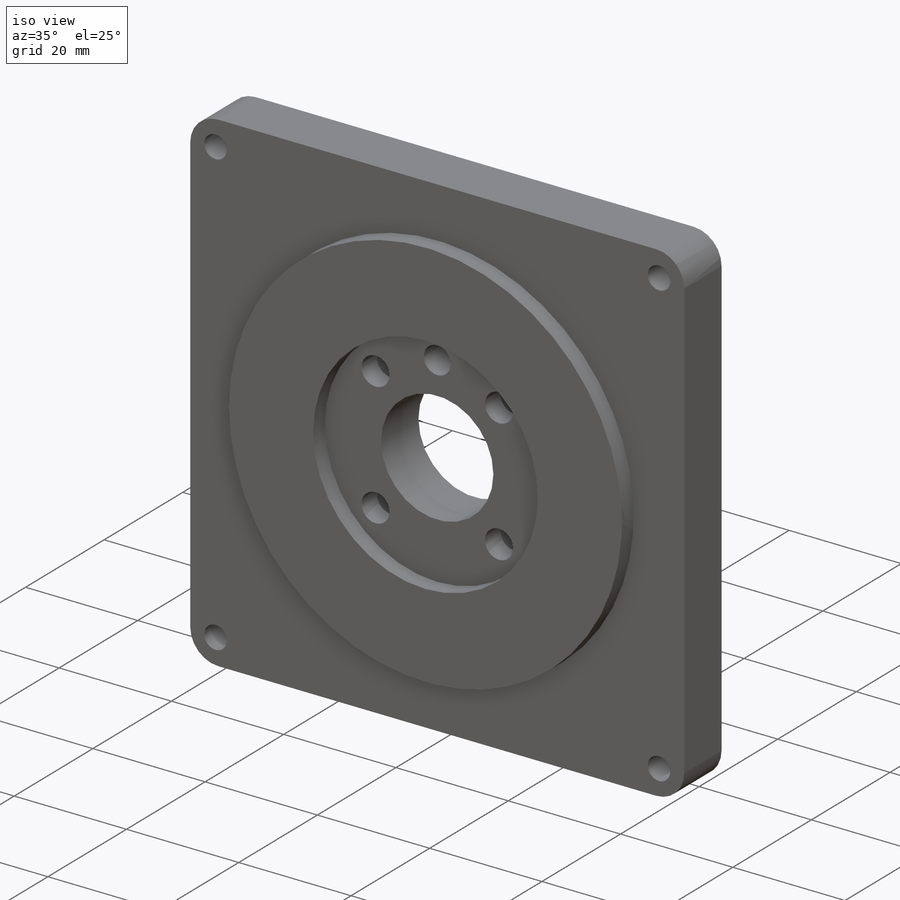
[diagram: iso view]
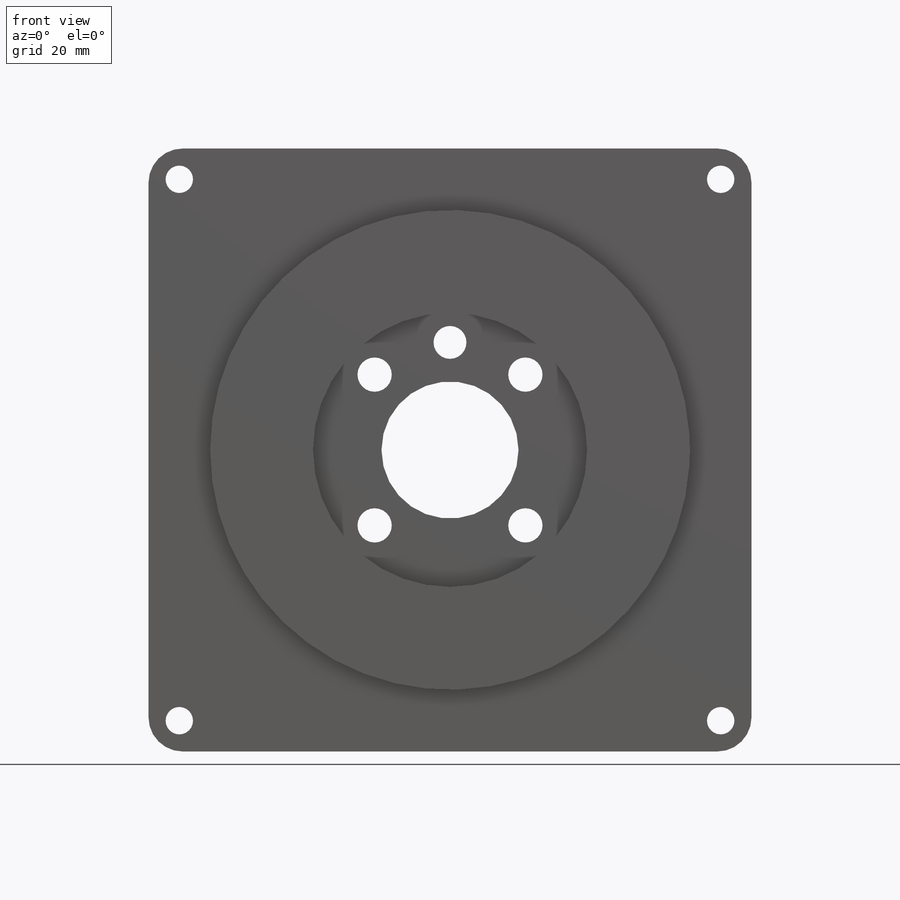
[diagram: front view]
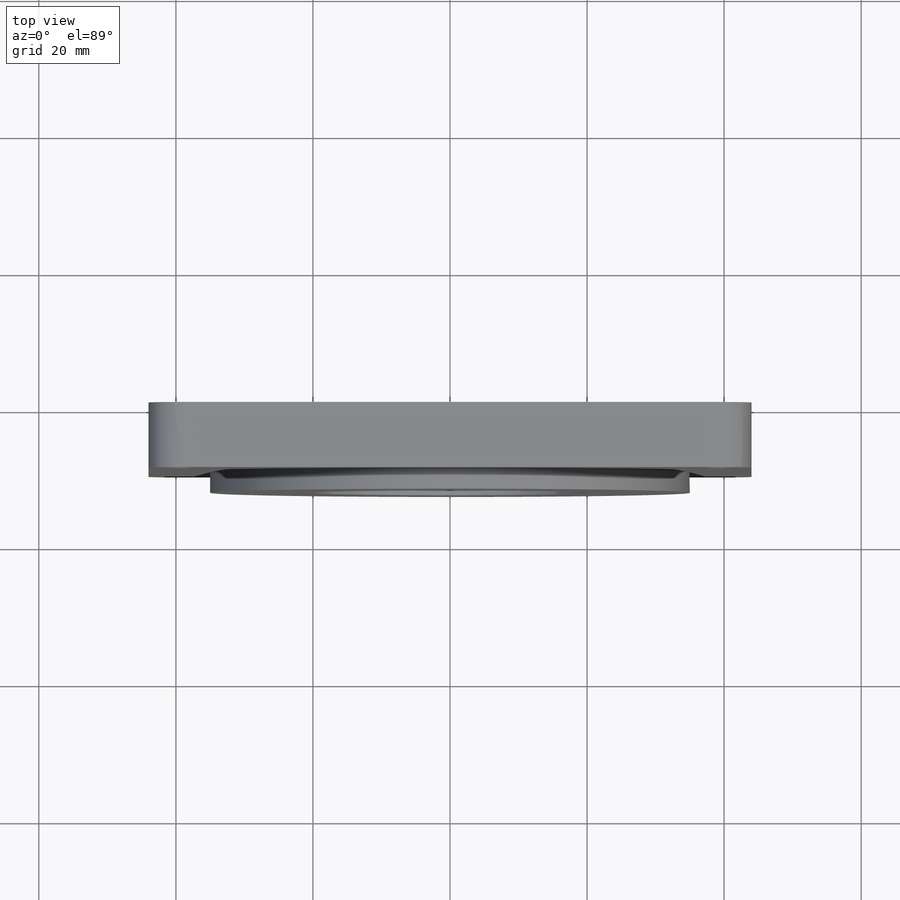
[diagram: top view]
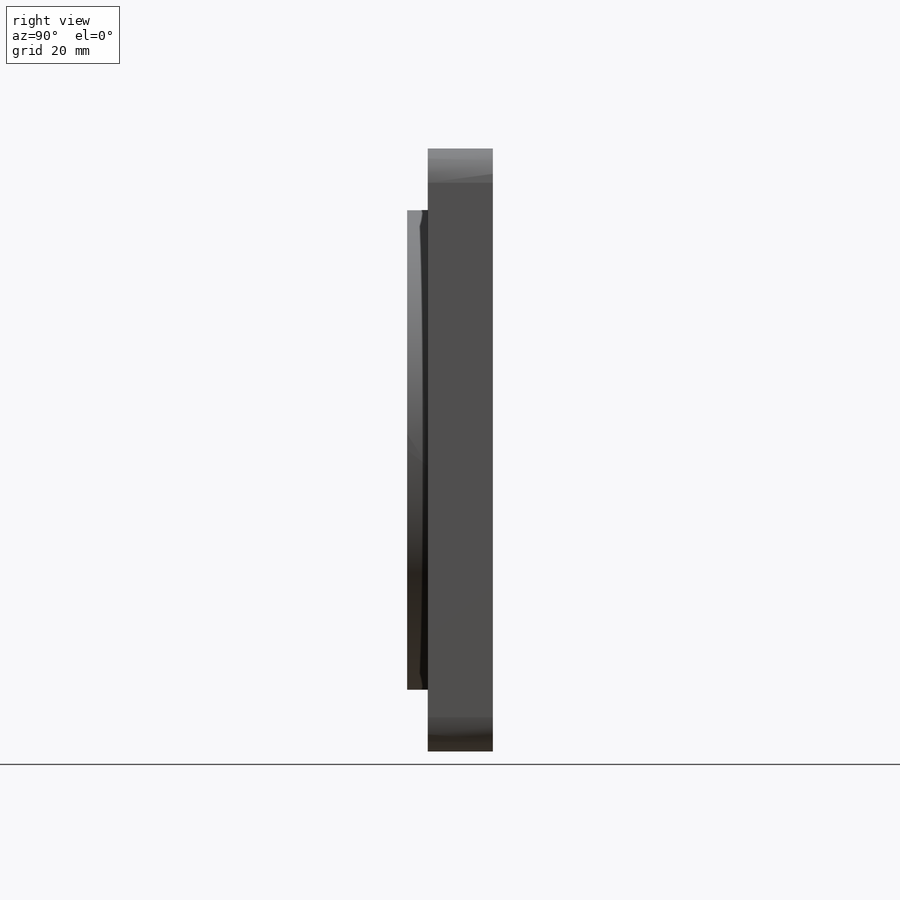
[diagram: right view]
SOLIDWORKS PART (.sldprt)
format: sldprt  version: not decoded by parser v0  size: 327,680 bytes
history: native  units: mm
features: sketch x7, cut_extrude x3, extrude x2, material x1, hole x1, fillet x1 (+13 scaffold rows collapsed)
feature tree (28):
  scaffold x13  (default folders/planes/origin — collapsed)
  material  "1060 Alloy"
  sketch  "Sketch1"  dims[D1=88.0mm D2=88.0mm]
  extrude  "Boss-Extrude1"  Depth=9.5mm
  sketch  "Sketch2"  dims[D1=70.0mm D2=40.0mm]
  extrude  "Boss-Extrude2"  Depth=3mm
  sketch  "Sketch3"  dims[D1=20.0mm]
  cut_extrude  "Cut-Extrude1"  [1 undecoded]
  hole  "CBORE for M5 Hex Head Bolt1"  Diameter=5mm Depth=12.5mm
  sketch  "3DSketch1"  dims[D1=22.0mm]
  sketch  "Sketch4"  dims[hole-wizard template sketch: 42 standard entries collapsed; hole parameters kept: c12.Thru Hole Depth=12.5mm c12.C'Bore Dia.=10.0mm c12.C'Bore Depth=5.6mm]
  sketch  "Sketch5"  dims[D1=4.8mm D2=15.75mm]
  cut_extrude  "Cut-Extrude2"  [1 undecoded]
  fillet  "Fillet1"  Radius=5mm
  sketch  "Sketch6"  dims[D2=4.0mm D1=79.0mm]
  cut_extrude  "Cut-Extrude3"  [1 undecoded]
decode coverage: 11 of 14 modeling features carry decoded parameters
note: ~ marks probable driven/reference dimensions
note: 3 parameter values undecoded
summary: no parameter record found for 3 features
note: suppression state not decoded; provenance and decode notes live in map.json
